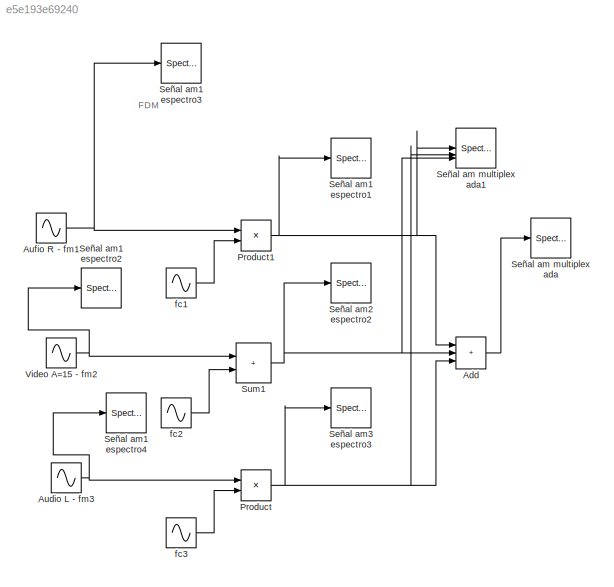
MODEL slx_e5e193e69240
KIND model
CONFIG AbsTol = auto
CONFIG EnableMultiTasking = off
CONFIG FixedStep = auto
CONFIG MaxStep = auto
CONFIG MinStep = auto
CONFIG RelTol = 1e-3
CONFIG SampleTimeConstraint = Unconstrained
CONFIG SolverName = VariableStepAuto
CONFIG StartTime = 0.0
CONFIG StopTime = 0.05
BLOCK [Sum] Add
  IconShape = rectangular
  Inputs = +++
BLOCK [Sin] Audio L - fm3
  Frequency = 15e3*2*pi
  Phase = pi/2
  SampleTime = Ts*0.5
BLOCK [Sin] Aufio R - fm1
  Frequency = 2*pi*15e3
  Phase = pi/2
  SampleTime = Ts*0.5
BLOCK [Product] Product
BLOCK [Product] Product1
BLOCK [SpectrumAnalyzer] Señal am multiplexada
  GraphicalSettings = {"GraphicalSettings":{"Style":{"BackgroundColor":[0.12941176470588237,0.12941176470588237,0.12941176470588237],"AxesColor":[0.07058823529411765,0.07058823529411765,0.07058823529411765],"LabelsColor":[0.8509803921568627,0.8509803921568627,0.8509803921568627],"PreserveColors":false,"Visible":[true],"LineStyle":["-"],"LineWidth":[1.5],"BarWidth":[0.9],"LineColor":[[1,1,0.06666666666666667]],"LineFace...<+982ch>  <repeated x5 — deduplicated; at blocks: Señal am multiplexada, Señal am1 espectro1, Señal am1 espectro2, Señal am2 espectro2, Señal am3 espectro3>
  OpenAtSimulationStart = off
  SampleRate = 44.1e3
  ScopeFrameLocation = window
  SelectedToolstripTab = spectrumAnalyzerToolstrip.spectrumTab
  ShowLegend = on
  StartFrequency = 20
  StopFrequency = 20e3
  WasSavedAsWebScope = on
  WindowPosition = [4801.000000,1.000000,960.000000,1043.000000,]
  YLimits = [-245.22504838,53.89100408]
BLOCK [SpectrumAnalyzer] Señal am multiplexada1
  GraphicalSettings = {"GraphicalSettings":{"Style":{"BackgroundColor":[0.12941176470588237,0.12941176470588237,0.12941176470588237],"AxesColor":[0.07058823529411765,0.07058823529411765,0.07058823529411765],"LabelsColor":[0.8509803921568627,0.8509803921568627,0.8509803921568627],"PreserveColors":false,"Visible":[true,true,true],"LineStyle":["-","-","-"],"LineWidth":[1.5,1.5,1.5],"BarWidth":[0.9,0.9,0.9],"LineColor":[[1...<+1157ch>
  NumInputPorts = 3
  OpenAtSimulationStart = off
  PlotAsTwoSidedSpectrum = off
  SampleRate = 44.1e3
  ScopeFrameLocation = window
  SelectedToolstripTab = spectrumAnalyzerToolstrip.spectrumTab
  ShowLegend = on
  StartFrequency = 20
  StopFrequency = 20e3
  WasSavedAsWebScope = on
  WindowPosition = [4218.000000,-7.000000,958.000000,1000.000000,]
  YLimits = [-255.87739063,55.07459767]
BLOCK [SpectrumAnalyzer] Señal am1 espectro1
  OpenAtSimulationStart = off
  SampleRate = 44.1e3
  ScopeFrameLocation = window
  SelectedToolstripTab = spectrumAnalyzerToolstrip.spectrumTab
  ShowLegend = on
  StartFrequency = 20
  StopFrequency = 20e3
  WasSavedAsWebScope = on
  WindowPosition = [3841.000000,1.000000,1920.000000,1043.000000,]
  YLimits = [-253.80039263,49.03867723]
BLOCK [SpectrumAnalyzer] Señal am1 espectro2
  OpenAtSimulationStart = off
  SampleRate = 44.1e3
  ScopeFrameLocation = window
  SelectedToolstripTab = spectrumAnalyzerToolstrip.channelMeasurementsTab
  ShowLegend = on
  StartFrequency = 20
  StopFrequency = 20e3
  WasSavedAsWebScope = on
  WindowPosition = [3842.000000,44.000000,958.000000,1000.000000,]
  YLimits = [-248.59691405,54.26565582]
BLOCK [SpectrumAnalyzer] Señal am1 espectro3
  FrequencySpan = Span and center frequency
  GraphicalSettings = {"GraphicalSettings":{"Style":{"BackgroundColor":[0.12941176470588237,0.12941176470588237,0.12941176470588237],"AxesColor":[0.07058823529411765,0.07058823529411765,0.07058823529411765],"LabelsColor":[0.8509803921568627,0.8509803921568627,0.8509803921568627],"PreserveColors":false,"Visible":[true],"LineStyle":["-"],"LineWidth":[1.5],"BarWidth":[0.9],"LineColor":[[1,1,0.06666666666666667]],"LineFace...<+983ch>
  OpenAtSimulationStart = off
  SampleRate = 44.1e3
  ScopeFrameLocation = window
  SelectedToolstripTab = spectrumAnalyzerToolstrip.channelMeasurementsTab
  ShowLegend = on
  StartFrequency = 20
  StopFrequency = 20e3
  WasSavedAsWebScope = on
  WindowPosition = [3850.000000,44.000000,1902.000000,1000.000000,]
  YLimits = [-54.80850955,-52.41895195]
BLOCK [SpectrumAnalyzer] Señal am1 espectro4
  FrequencySpan = Span and center frequency
  GraphicalSettings = {"GraphicalSettings":{"Style":{"BackgroundColor":[0.12941176470588237,0.12941176470588237,0.12941176470588237],"AxesColor":[0.07058823529411765,0.07058823529411765,0.07058823529411765],"LabelsColor":[0.8509803921568627,0.8509803921568627,0.8509803921568627],"PreserveColors":false,"Visible":[true],"LineStyle":["-"],"LineWidth":[1.5],"BarWidth":[0.9],"LineColor":[[1,1,0.06666666666666667]],"LineFace...<+983ch>
  OpenAtSimulationStart = off
  SampleRate = 44.1e3
  ScopeFrameLocation = window
  SelectedToolstripTab = spectrumAnalyzerToolstrip.channelMeasurementsTab
  ShowLegend = on
  StartFrequency = 20
  StopFrequency = 20e3
  WasSavedAsWebScope = on
  WindowPosition = [3850.000000,44.000000,1902.000000,1000.000000,]
  YLimits = [-64.11268541,-43.64806104]
BLOCK [SpectrumAnalyzer] Señal am2 espectro2
  OpenAtSimulationStart = off
  SampleRate = 44.1e3
  ScopeFrameLocation = window
  SelectedToolstripTab = spectrumAnalyzerToolstrip.spectrumTab
  ShowLegend = on
  StartFrequency = 20
  StopFrequency = 20e3
  WasSavedAsWebScope = on
  WindowPosition = [3841.000000,1.000000,1920.000000,1043.000000,]
  YLimits = [-0.01158904,0.10430133]
BLOCK [SpectrumAnalyzer] Señal am3 espectro3
  OpenAtSimulationStart = off
  SampleRate = 44.1e3
  ScopeFrameLocation = window
  SelectedToolstripTab = spectrumAnalyzerToolstrip.spectrumTab
  ShowLegend = on
  StartFrequency = 20
  StopFrequency = 20e3
  WasSavedAsWebScope = on
  WindowPosition = [3841.000000,1.000000,1920.000000,1043.000000,]
  YLimits = [-0.00875564,0.07880078]
BLOCK [Sum] Sum1
  IconShape = rectangular
BLOCK [Sin] Video A=15 - fm2
  Frequency = 2*pi*3e6
  Phase = pi/2
  SampleTime = Ts*0.5
BLOCK [Sin] fc1
  Frequency = 2*pi*5.375e6
  Phase = pi/2
  SampleTime = Ts*0.5
  VectorParams1D = off
BLOCK [Sin] fc2
  Frequency = 2*pi*1e6
  Phase = pi/2
  SampleTime = Ts*0.5
BLOCK [Sin] fc3
  Frequency = 2*pi*5.875e6
  Phase = pi/2
  SampleTime = Ts*0.5
ANNOTATION (root): FDM
LINE Add:1 -> Señal am multiplexada:1
NET Audio L - fm3:1 -> Product:1, Señal am1 espectro4:1
NET Aufio R - fm1:1 -> Product1:1, Señal am1 espectro3:1
NET Product1:1 -> Add:1, Señal am multiplexada1:1, Señal am1 espectro1:1
NET Product:1 -> Add:3, Señal am multiplexada1:2, Señal am3 espectro3:1
NET Sum1:1 -> Add:2, Señal am multiplexada1:3, Señal am2 espectro2:1
NET Video A=15 - fm2:1 -> Señal am1 espectro2:1, Sum1:1
LINE fc1:1 -> Product1:2
LINE fc2:1 -> Sum1:2
LINE fc3:1 -> Product:2
note: NET lines group one-source signal fan-out (src -> all destinations, sorted); 1:1 wires keep LINE
